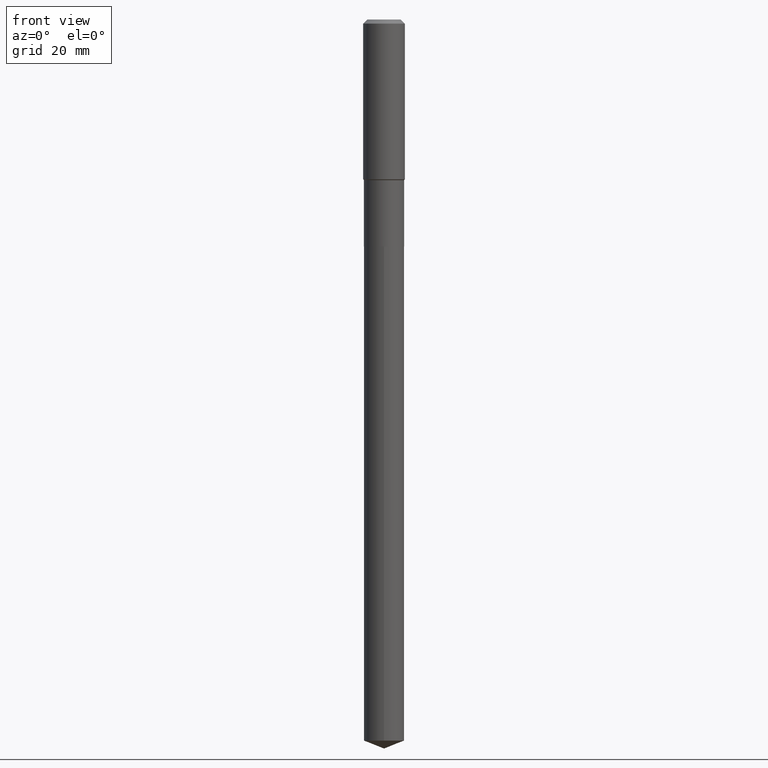
[diagram: clean part render]
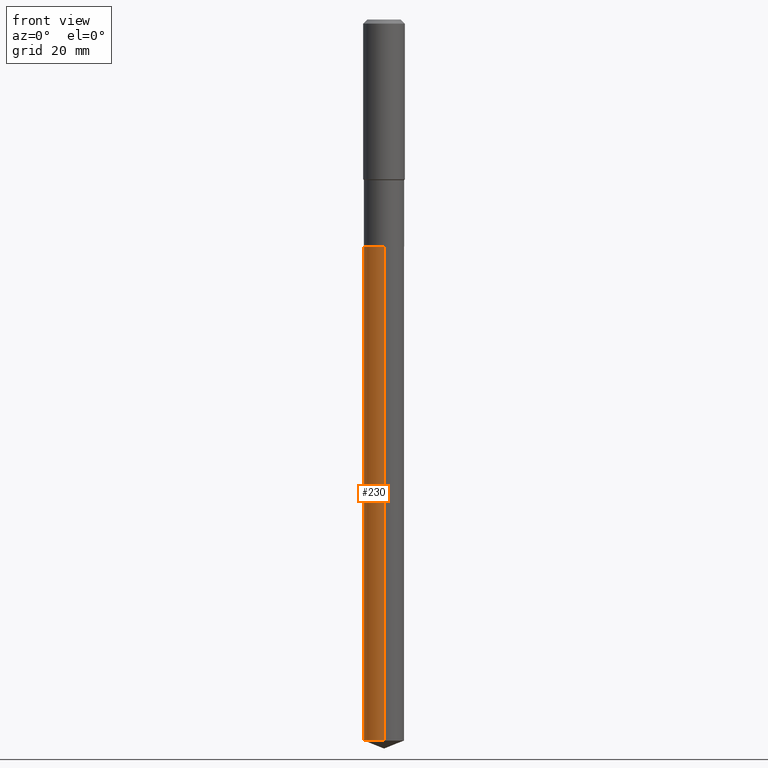
[diagram: same view with one face highlighted and labeled with its STEP entity id]
A machine part, front view. The second image highlights one B-rep face of the part: STEP entity #230.
In plain terms, the highlighted cylindrical surface (edge-blend (fillet) strip) has radius 5.8001 mm, axis along (-0, 0, 1).
Its self-contained STEP definition (entity closure, byte-faithful):
#2 = CYLINDRICAL_SURFACE ( 'NONE', #289, 0.2283499999999999974 ) ;
#4 = CIRCLE ( 'NONE', #480, 0.2283499999999999974 ) ;
#18 = CIRCLE ( 'NONE', #200, 0.2283499999999999974 ) ;
#20 = VERTEX_POINT ( 'NONE', #395 ) ;
#39 = EDGE_CURVE ( 'NONE', #20, #284, #18, .T. ) ;
#43 = DIRECTION ( 'NONE',  ( -2.445481569686249051E-29, 3.491463060783099046E-15, 1.000000000000000000 ) ) ;
#49 = CARTESIAN_POINT ( 'NONE',  ( 1.999923901131654645E-28, -2.855340844756166145E-14, -8.178050542893329222 ) ) ;
#54 = DIRECTION ( 'NONE',  ( -2.445481569686249051E-29, 3.491463060783099046E-15, 1.000000000000000000 ) ) ;
#95 = DIRECTION ( 'NONE',  ( -2.445481569686249051E-29, 3.491463060783099046E-15, 1.000000000000000000 ) ) ;
#104 = VECTOR ( 'NONE', #457, 39.37007874015748143 ) ;
#111 = DIRECTION ( 'NONE',  ( -2.445481569686249051E-29, 3.491463060783099046E-15, 1.000000000000000000 ) ) ;
#147 = CARTESIAN_POINT ( 'NONE',  ( -1.594559527449595640E-15, -0.2283500000000089902, -2.575099999999999945 ) ) ;
#149 = LINE ( 'NONE', #372, #465 ) ;
#175 = ORIENTED_EDGE ( 'NONE', *, *, #244, .T. ) ;
#183 = ORIENTED_EDGE ( 'NONE', *, *, #39, .T. ) ;
#185 = EDGE_LOOP ( 'NONE', ( #226, #183, #175, #422 ) ) ;
#193 = VERTEX_POINT ( 'NONE', #147 ) ;
#194 = DIRECTION ( 'NONE',  ( -6.982962677686265922E-15, -1.000000000000000000, 4.785369815921634803E-15 ) ) ;
#200 = AXIS2_PLACEMENT_3D ( 'NONE', #49, #54, #194 ) ;
#216 = CARTESIAN_POINT ( 'NONE',  ( 6.297326722807346866E-29, -8.990913595654986612E-15, -2.575100000000000833 ) ) ;
#226 = ORIENTED_EDGE ( 'NONE', *, *, #363, .F. ) ;
#230 = ADVANCED_FACE ( 'NONE', ( #380 ), #2, .T. ) ;
#244 = EDGE_CURVE ( 'NONE', #284, #193, #149, .T. ) ;
#255 = CARTESIAN_POINT ( 'NONE',  ( 6.297326722807346866E-29, -8.990913595654986612E-15, -2.575100000000000833 ) ) ;
#262 = DIRECTION ( 'NONE',  ( -6.982962677686265922E-15, -1.000000000000000000, 2.392684907960817401E-15 ) ) ;
#284 = VERTEX_POINT ( 'NONE', #453 ) ;
#289 = AXIS2_PLACEMENT_3D ( 'NONE', #255, #111, #262 ) ;
#299 = VERTEX_POINT ( 'NONE', #459 ) ;
#363 = EDGE_CURVE ( 'NONE', #20, #299, #391, .T. ) ;
#372 = CARTESIAN_POINT ( 'NONE',  ( -1.594559527449595640E-15, -0.2283500000000089902, -2.575099999999999945 ) ) ;
#380 = FACE_OUTER_BOUND ( 'NONE', #185, .T. ) ;
#391 = LINE ( 'NONE', #424, #104 ) ;
#395 = CARTESIAN_POINT ( 'NONE',  ( 1.622524337108388338E-15, 0.2283499999999714092, -8.178050542893330999 ) ) ;
#422 = ORIENTED_EDGE ( 'NONE', *, *, #470, .F. ) ;
#424 = CARTESIAN_POINT ( 'NONE',  ( 1.622524337108251668E-15, 0.2283499999999910324, -2.575100000000001277 ) ) ;
#453 = CARTESIAN_POINT ( 'NONE',  ( -1.594559527449458576E-15, -0.2283500000000284746, -8.178050542893329222 ) ) ;
#457 = DIRECTION ( 'NONE',  ( -2.445481569686249051E-29, 3.491463060783099046E-15, 1.000000000000000000 ) ) ;
#459 = CARTESIAN_POINT ( 'NONE',  ( 1.622524337108389718E-15, 0.2283499999999910601, -2.575100000000001277 ) ) ;
#465 = VECTOR ( 'NONE', #43, 39.37007874015748143 ) ;
#470 = EDGE_CURVE ( 'NONE', #299, #193, #4, .T. ) ;
#476 = DIRECTION ( 'NONE',  ( -6.982962677686265922E-15, -1.000000000000000000, 2.392684907960817401E-15 ) ) ;
#480 = AXIS2_PLACEMENT_3D ( 'NONE', #216, #95, #476 ) ;